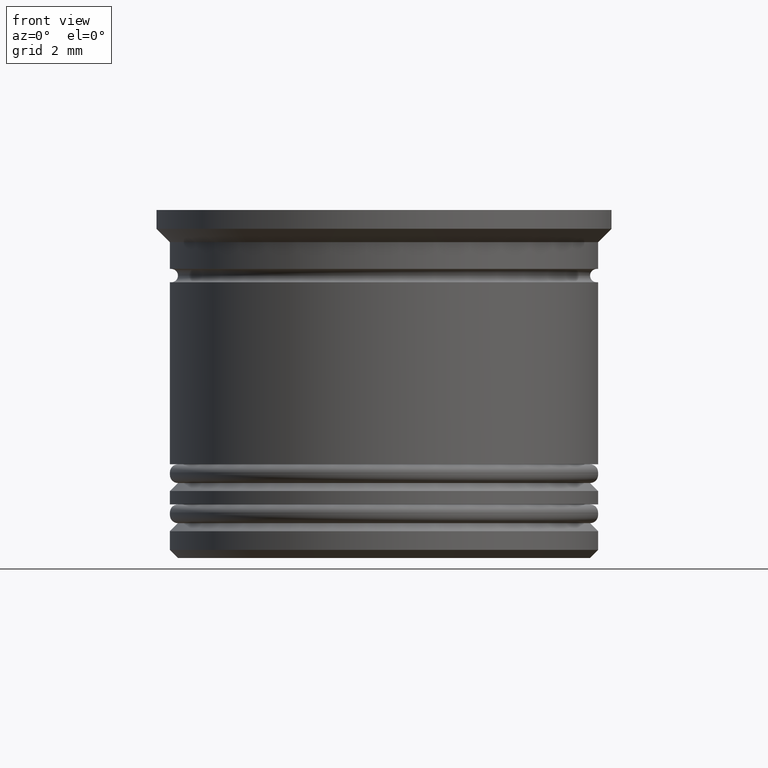
[diagram: clean part render]
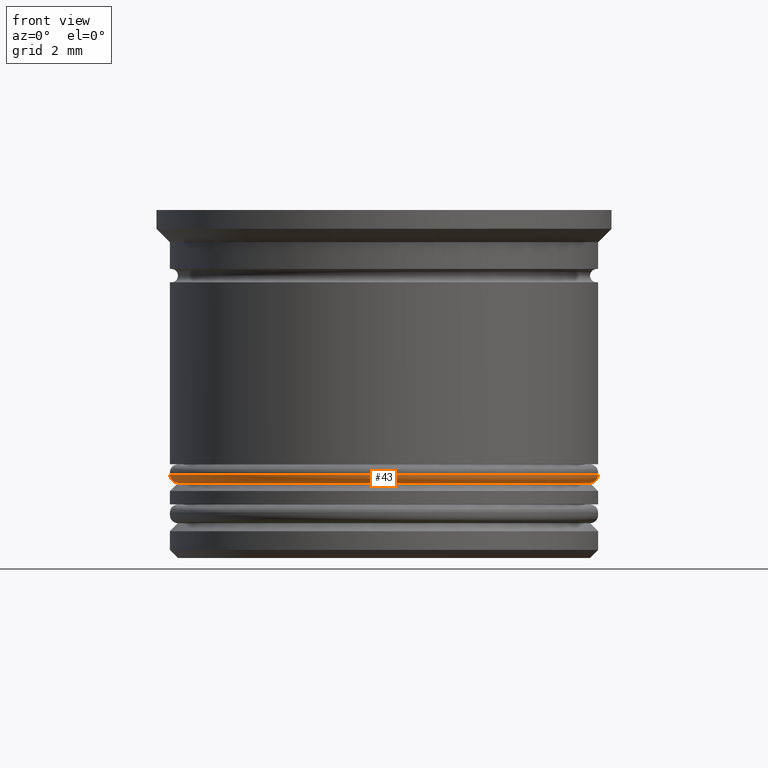
[diagram: same view with one face highlighted and labeled with its STEP entity id]
A machine part, front view. The second image highlights one B-rep face of the part: STEP entity #43.
In plain terms, the highlighted toroidal blend (fillet) surface has major radius 7.7 mm and minor (blend) radius 0.3 mm.
Its self-contained STEP definition (entity closure, byte-faithful):
#10 = CIRCLE ( 'NONE', #605, 8.000000000000001776 ) ;
#43 = ADVANCED_FACE ( 'NONE', ( #1824 ), #201, .T. ) ;
#89 = ORIENTED_EDGE ( 'NONE', *, *, #165, .T. ) ;
#142 = VERTEX_POINT ( 'NONE', #1314 ) ;
#165 = EDGE_CURVE ( 'NONE', #142, #1301, #1744, .T. ) ;
#170 = AXIS2_PLACEMENT_3D ( 'NONE', #853, #1146, #1755 ) ;
#201 = TOROIDAL_SURFACE ( 'NONE', #944, 7.700000000000001954, 0.2999999999999999889 ) ;
#248 = EDGE_LOOP ( 'NONE', ( #1931, #1003, #89, #958 ) ) ;
#315 = VERTEX_POINT ( 'NONE', #1509 ) ;
#520 = EDGE_CURVE ( 'NONE', #1835, #1301, #10, .T. ) ;
#530 = CARTESIAN_POINT ( 'NONE',  ( -8.000000000000001776, 9.797174393178827630E-16, -9.900000000000005684 ) ) ;
#537 = CARTESIAN_POINT ( 'NONE',  ( -7.700000000000001954, 9.429780353434622974E-16, -9.900000000000005684 ) ) ;
#541 = DIRECTION ( 'NONE',  ( 1.000000000000000000, 0.000000000000000000, 0.000000000000000000 ) ) ;
#605 = AXIS2_PLACEMENT_3D ( 'NONE', #1384, #1547, #622 ) ;
#622 = DIRECTION ( 'NONE',  ( 1.000000000000000000, 0.000000000000000000, 0.000000000000000000 ) ) ;
#732 = CIRCLE ( 'NONE', #767, 7.700000000000001954 ) ;
#767 = AXIS2_PLACEMENT_3D ( 'NONE', #845, #1004, #541 ) ;
#845 = CARTESIAN_POINT ( 'NONE',  ( 0.000000000000000000, 0.000000000000000000, -10.20000000000000817 ) ) ;
#853 = CARTESIAN_POINT ( 'NONE',  ( 7.700000000000001954, 0.000000000000000000, -9.900000000000005684 ) ) ;
#893 = DIRECTION ( 'NONE',  ( 0.000000000000000000, 0.000000000000000000, 1.000000000000000000 ) ) ;
#927 = CIRCLE ( 'NONE', #984, 0.2999999999999999334 ) ;
#944 = AXIS2_PLACEMENT_3D ( 'NONE', #1410, #893, #1208 ) ;
#958 = ORIENTED_EDGE ( 'NONE', *, *, #520, .F. ) ;
#963 = DIRECTION ( 'NONE',  ( 1.224646799147353207E-16, 1.000000000000000000, -0.000000000000000000 ) ) ;
#984 = AXIS2_PLACEMENT_3D ( 'NONE', #537, #963, #1150 ) ;
#1003 = ORIENTED_EDGE ( 'NONE', *, *, #1171, .F. ) ;
#1004 = DIRECTION ( 'NONE',  ( -0.000000000000000000, -0.000000000000000000, -1.000000000000000000 ) ) ;
#1116 = CARTESIAN_POINT ( 'NONE',  ( 8.000000000000001776, 0.000000000000000000, -9.900000000000005684 ) ) ;
#1146 = DIRECTION ( 'NONE',  ( 0.000000000000000000, -1.000000000000000000, 0.000000000000000000 ) ) ;
#1150 = DIRECTION ( 'NONE',  ( -1.000000000000000000, 1.224646799147353207E-16, 0.000000000000000000 ) ) ;
#1171 = EDGE_CURVE ( 'NONE', #142, #315, #732, .T. ) ;
#1208 = DIRECTION ( 'NONE',  ( 1.000000000000000000, 0.000000000000000000, 0.000000000000000000 ) ) ;
#1301 = VERTEX_POINT ( 'NONE', #1116 ) ;
#1314 = CARTESIAN_POINT ( 'NONE',  ( 7.700000000000001954, 0.000000000000000000, -10.20000000000000817 ) ) ;
#1384 = CARTESIAN_POINT ( 'NONE',  ( 0.000000000000000000, 0.000000000000000000, -9.900000000000005684 ) ) ;
#1410 = CARTESIAN_POINT ( 'NONE',  ( 0.000000000000000000, 0.000000000000000000, -9.900000000000005684 ) ) ;
#1509 = CARTESIAN_POINT ( 'NONE',  ( -7.700000000000001954, 9.613477373306725302E-16, -10.20000000000000817 ) ) ;
#1547 = DIRECTION ( 'NONE',  ( 0.000000000000000000, 0.000000000000000000, 1.000000000000000000 ) ) ;
#1744 = CIRCLE ( 'NONE', #170, 0.2999999999999999334 ) ;
#1755 = DIRECTION ( 'NONE',  ( 0.000000000000000000, 0.000000000000000000, -1.000000000000000000 ) ) ;
#1824 = FACE_OUTER_BOUND ( 'NONE', #248, .T. ) ;
#1835 = VERTEX_POINT ( 'NONE', #530 ) ;
#1931 = ORIENTED_EDGE ( 'NONE', *, *, #1989, .F. ) ;
#1989 = EDGE_CURVE ( 'NONE', #315, #1835, #927, .T. ) ;